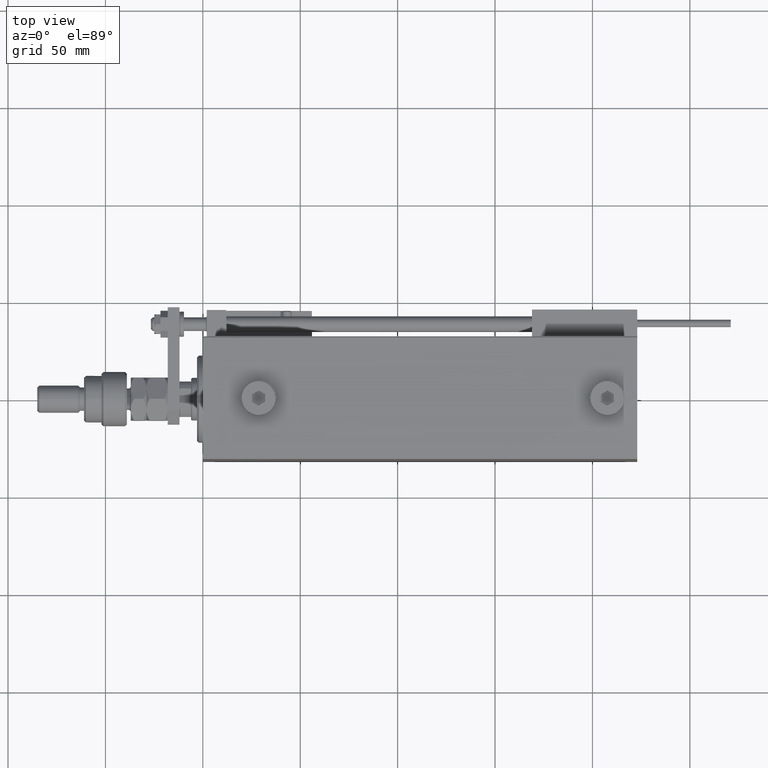
[diagram: clean part render]
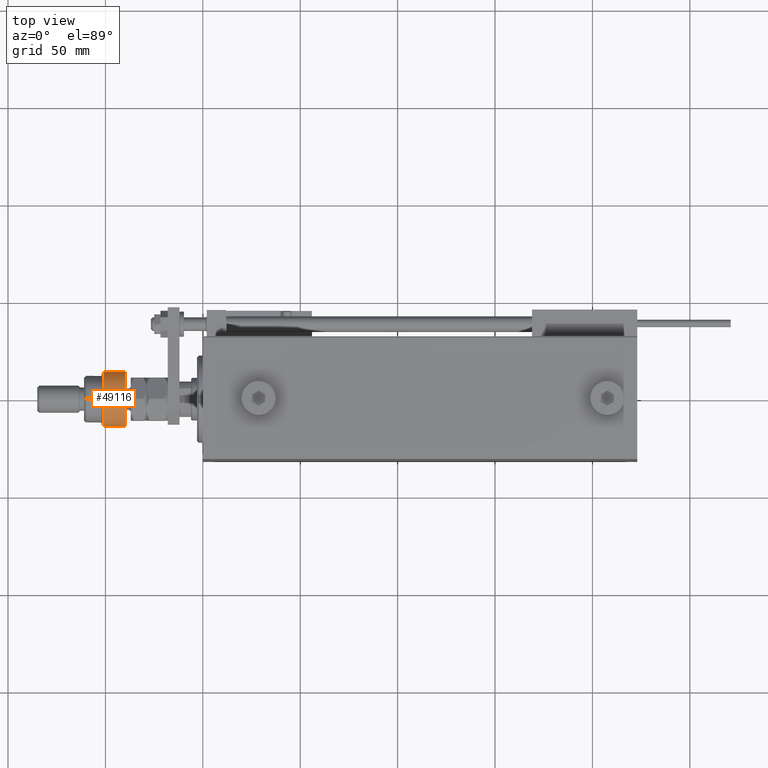
[diagram: same view with one face highlighted and labeled with its STEP entity id]
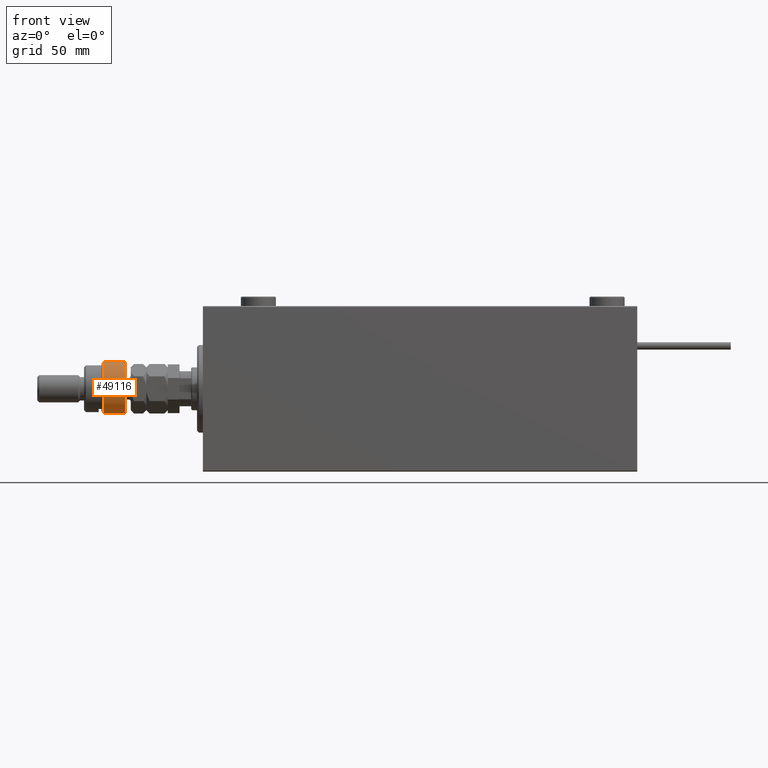
[diagram: same view with one face highlighted and labeled with its STEP entity id]
A machine part, top view. The second image highlights one B-rep face of the part: STEP entity #49116.
A second angle (front view) of the same face is appended — the face is thin or edge-on in the first view.
In plain terms, the highlighted cylindrical surface (edge-blend (fillet) strip) has radius 14 mm, axis along (1, 0, -0).
Its self-contained STEP definition (entity closure, byte-faithful):
#947 = DIRECTION ( 'NONE',  ( -0.000000000000000000, -0.000000000000000000, 1.000000000000000000 ) ) ;
#1723 = EDGE_CURVE ( 'NONE', #11804, #15682, #1929, .T. ) ;
#1929 = LINE ( 'NONE', #52923, #31658 ) ;
#2264 = CIRCLE ( 'NONE', #21961, 14.00000000000000000 ) ;
#3859 = EDGE_CURVE ( 'NONE', #26569, #15682, #2264, .T. ) ;
#5760 = DIRECTION ( 'NONE',  ( -0.000000000000000000, -0.000000000000000000, -1.000000000000000000 ) ) ;
#6654 = EDGE_LOOP ( 'NONE', ( #10976, #39047, #14431, #17717, #48088 ) ) ;
#6984 = EDGE_CURVE ( 'NONE', #11804, #26653, #49801, .T. ) ;
#8515 = CYLINDRICAL_SURFACE ( 'NONE', #23561, 14.00000000000000000 ) ;
#10976 = ORIENTED_EDGE ( 'NONE', *, *, #1723, .F. ) ;
#11804 = VERTEX_POINT ( 'NONE', #31040 ) ;
#12444 = FACE_OUTER_BOUND ( 'NONE', #6654, .T. ) ;
#13718 = DIRECTION ( 'NONE',  ( 0.000000000000000000, 0.000000000000000000, -1.000000000000000000 ) ) ;
#14020 = CIRCLE ( 'NONE', #21124, 14.00000000000000000 ) ;
#14431 = ORIENTED_EDGE ( 'NONE', *, *, #53941, .T. ) ;
#15480 = CARTESIAN_POINT ( 'NONE',  ( 0.000000000000000000, 0.000000000000000000, 1.000000000000032196 ) ) ;
#15682 = VERTEX_POINT ( 'NONE', #18134 ) ;
#17717 = ORIENTED_EDGE ( 'NONE', *, *, #30560, .T. ) ;
#18134 = CARTESIAN_POINT ( 'NONE',  ( -12.64911064067351809, 6.000000000000000000, 1.000000000000035527 ) ) ;
#21124 = AXIS2_PLACEMENT_3D ( 'NONE', #15480, #23884, #37598 ) ;
#21961 = AXIS2_PLACEMENT_3D ( 'NONE', #39321, #947, #43249 ) ;
#23561 = AXIS2_PLACEMENT_3D ( 'NONE', #46869, #46040, #25597 ) ;
#23884 = DIRECTION ( 'NONE',  ( -0.000000000000000000, -0.000000000000000000, 1.000000000000000000 ) ) ;
#24177 = CARTESIAN_POINT ( 'NONE',  ( -12.64911064067351809, -5.999999999999999112, 12.00000000000003553 ) ) ;
#25597 = DIRECTION ( 'NONE',  ( -1.000000000000000000, 0.000000000000000000, 0.000000000000000000 ) ) ;
#26569 = VERTEX_POINT ( 'NONE', #31992 ) ;
#26653 = VERTEX_POINT ( 'NONE', #24177 ) ;
#30560 = EDGE_CURVE ( 'NONE', #49211, #26569, #14020, .T. ) ;
#31040 = CARTESIAN_POINT ( 'NONE',  ( -12.64911064067351809, 6.000000000000000000, 12.00000000000003553 ) ) ;
#31658 = VECTOR ( 'NONE', #36110, 1000.000000000000000 ) ;
#31992 = CARTESIAN_POINT ( 'NONE',  ( 14.00000000000000000, 0.000000000000000000, 1.000000000000032196 ) ) ;
#33701 = AXIS2_PLACEMENT_3D ( 'NONE', #43398, #13718, #39482 ) ;
#36008 = LINE ( 'NONE', #39658, #42574 ) ;
#36110 = DIRECTION ( 'NONE',  ( -0.000000000000000000, -0.000000000000000000, -1.000000000000000000 ) ) ;
#37598 = DIRECTION ( 'NONE',  ( 1.000000000000000000, 0.000000000000000000, 0.000000000000000000 ) ) ;
#39047 = ORIENTED_EDGE ( 'NONE', *, *, #6984, .T. ) ;
#39321 = CARTESIAN_POINT ( 'NONE',  ( 0.000000000000000000, 0.000000000000000000, 1.000000000000032196 ) ) ;
#39482 = DIRECTION ( 'NONE',  ( 1.000000000000000000, 0.000000000000000000, 0.000000000000000000 ) ) ;
#39658 = CARTESIAN_POINT ( 'NONE',  ( -12.64911064067351809, -5.999999999999999112, 14.50000000000000000 ) ) ;
#42574 = VECTOR ( 'NONE', #5760, 1000.000000000000000 ) ;
#43249 = DIRECTION ( 'NONE',  ( 1.000000000000000000, 0.000000000000000000, 0.000000000000000000 ) ) ;
#43398 = CARTESIAN_POINT ( 'NONE',  ( 0.000000000000000000, 0.000000000000000000, 12.00000000000003553 ) ) ;
#46040 = DIRECTION ( 'NONE',  ( -0.000000000000000000, -0.000000000000000000, -1.000000000000000000 ) ) ;
#46869 = CARTESIAN_POINT ( 'NONE',  ( 0.000000000000000000, 0.000000000000000000, 13.00000000000000000 ) ) ;
#48088 = ORIENTED_EDGE ( 'NONE', *, *, #3859, .T. ) ;
#49116 = ADVANCED_FACE ( 'NONE', ( #12444 ), #8515, .T. ) ;
#49211 = VERTEX_POINT ( 'NONE', #50806 ) ;
#49801 = CIRCLE ( 'NONE', #33701, 14.00000000000000000 ) ;
#50806 = CARTESIAN_POINT ( 'NONE',  ( -12.64911064067351809, -5.999999999999999112, 1.000000000000035527 ) ) ;
#52923 = CARTESIAN_POINT ( 'NONE',  ( -12.64911064067351809, 6.000000000000000000, 14.50000000000000000 ) ) ;
#53941 = EDGE_CURVE ( 'NONE', #26653, #49211, #36008, .T. ) ;